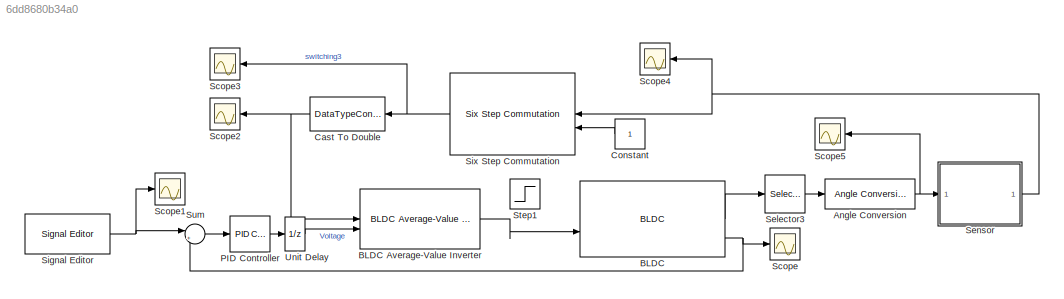
MODEL slx_6dd8680b34a0
KIND model
CONFIG AbsTol = auto
CONFIG EnableMultiTasking = off
CONFIG FixedStep = auto
CONFIG MaxStep = auto
CONFIG MinStep = auto
CONFIG RelTol = 1e-3
CONFIG SampleTimeConstraint = Unconstrained
CONFIG SolverName = VariableStepAuto
CONFIG StartTime = 0.0
CONFIG StopTime = 30
BLOCK [Reference] Angle Conversion  REF=aerolibconvert2/Angle Conversion
  SourceBlock = aerolibconvert2/Angle Conversion
  SourceType = Angle Conversion
BLOCK [Reference] BLDC  REF=autolibbldc/BLDC
  LibrarySourceBlock = mcblib/Electrical Systems/Motors/BLDC
  SourceBlock = autolibbldc/BLDC
  SourceType = BLDC
BLOCK [Reference] BLDC Average-Value Inverter  REF=mcbplantlib/BLDC Average-Value Inverter
  LibrarySourceBlock = mcblib/Electrical Systems/Inverters/BLDC Average-Value Inverter
  SourceBlock = mcbplantlib/BLDC Average-Value Inverter
  SourceType = BLDC Average Value Inverter
BLOCK [DataTypeConversion] Cast To Double
  OutDataTypeStr = double
  RndMeth = Floor
  SaturateOnIntegerOverflow = off
BLOCK [Constant] Constant
BLOCK [Reference] PID Controller  REF=slpidlib/PID Controller
  SourceBlock = slpidlib/PID Controller
  SourceType = PID 1dof
BLOCK [Scope] Scope
  Floating = off
  NumInputPorts = 1
  ScopeSpecificationString = Simulink.scopes.TimeScopeBlockCfg('CurrentConfiguration', extmgr.ConfigurationSet(extmgr.Configuration('Core','General UI',true),extmgr.Configuration('Core','Source UI',true),extmgr.Configuration('Sources','WiredSimulink',true),extmgr.Configuration('Visuals','Time Domain',true,'SerializedDisplays',{struct('MinYLimReal','-275.75235','MaxYLimReal','2481.77117','YLabelReal','','MinYLimMag',' 0.00000'...<+1447ch>
BLOCK [Scope] Scope1
  Floating = off
  NumInputPorts = 1
  ScopeSpecificationString = Simulink.scopes.TimeScopeBlockCfg('CurrentConfiguration', extmgr.ConfigurationSet(extmgr.Configuration('Core','General UI',true),extmgr.Configuration('Core','Source UI',true),extmgr.Configuration('Sources','WiredSimulink',true,'DataLoggingVariableName','ScopeData1'),extmgr.Configuration('Visuals','Time Domain',true,'SerializedDisplays',{struct('MinYLimReal','785.71429','MaxYLimReal','2928.57143','...<+1415ch>
BLOCK [Scope] Scope2
  Floating = off
  NumInputPorts = 1
  ScopeSpecificationString = Simulink.scopes.TimeScopeBlockCfg('CurrentConfiguration', extmgr.ConfigurationSet(extmgr.Configuration('Core','General UI',true),extmgr.Configuration('Core','Source UI',true),extmgr.Configuration('Sources','WiredSimulink',true,'DataLoggingVariableName','ScopeData2'),extmgr.Configuration('Visuals','Time Domain',true,'SerializedDisplays',{struct('MinYLimReal','-0.125','MaxYLimReal','1.125','YLabelRe...<+1483ch>
BLOCK [Scope] Scope3
  Floating = off
  NumInputPorts = 1
  ScopeSpecificationString = Simulink.scopes.TimeScopeBlockCfg('CurrentConfiguration', extmgr.ConfigurationSet(extmgr.Configuration('Core','General UI',true),extmgr.Configuration('Core','Source UI',true),extmgr.Configuration('Sources','WiredSimulink',true,'DataLoggingVariableName','ScopeData3'),extmgr.Configuration('Visuals','Time Domain',true,'SerializedDisplays',{struct('MinYLimReal','-0.125','MaxYLimReal','1.125','YLabelRe...<+1459ch>
BLOCK [Scope] Scope4
  Floating = off
  NumInputPorts = 1
  ScopeSpecificationString = Simulink.scopes.TimeScopeBlockCfg('CurrentConfiguration', extmgr.ConfigurationSet(extmgr.Configuration('Core','General UI',true),extmgr.Configuration('Core','Source UI',true),extmgr.Configuration('Sources','WiredSimulink',true,'DataLoggingVariableName','ScopeData4'),extmgr.Configuration('Visuals','Time Domain',true,'SerializedDisplays',{struct('MinYLimReal','-44.99999','MaxYLimReal','404.99988','Y...<+1400ch>
BLOCK [Scope] Scope5
  Floating = off
  NumInputPorts = 1
  ScopeSpecificationString = Simulink.scopes.TimeScopeBlockCfg('CurrentConfiguration', extmgr.ConfigurationSet(extmgr.Configuration('Core','General UI',true),extmgr.Configuration('Core','Source UI',true),extmgr.Configuration('Sources','WiredSimulink',true,'DataLoggingVariableName','ScopeData5'),extmgr.Configuration('Visuals','Time Domain',true,'SerializedDisplays',{struct('MinYLimReal','-311947.24054','MaxYLimReal','2807525.1...<+1442ch>
BLOCK [Selector] Selector3
  IndexOptions = Index vector (dialog)
  Indices = [9]
  InputPortWidth = 16
  OutputSizes = 1
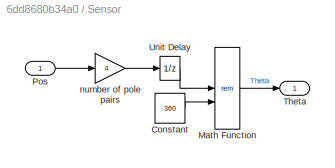
BLOCK [SubSystem] Sensor
BLOCK [Constant] Sensor/Constant
  Value = 360
BLOCK [Math] Sensor/Math Function
  Operator = rem
BLOCK [Inport] Sensor/Pos
BLOCK [Outport] Sensor/Theta
BLOCK [UnitDelay] Sensor/Unit Delay
  HasFrameUpgradeWarning = on
  SampleTime = 2e-5
BLOCK [Gain] Sensor/number of pole pairs
  Gain = 4
BLOCK [Reference] Signal Editor  REF=SignalEditorBlockLib/Signal Editor
  LibrarySourceBlock = simulink/Sources/Signal Editor
  SourceBlock = SignalEditorBlockLib/Signal Editor
  SourceType = SignalEditor
  UserDataPersistent = on
BLOCK [Reference] Six Step Commutation  REF=mcbcontrolslib/Six Step Commutation
  LibrarySourceBlock = mcblib/Controls/Control Reference/Six Step Commutation
  SourceBlock = mcbcontrolslib/Six Step Commutation
  SourceType = Six-Step Commutation
BLOCK [Step] Step1
  After = 2.77
  SampleTime = 0
  Time = 0.5
BLOCK [Sum] Sum
  Inputs = |+-
BLOCK [UnitDelay] Unit Delay
  HasFrameUpgradeWarning = on
  SampleTime = -1
NET Angle Conversion:1 -> Scope5:1, Sensor:1
LINE BLDC Average-Value Inverter:1 -> BLDC:2
LINE BLDC:1 -> Selector3:1
NET BLDC:3 -> Scope:1, Sum:2
NET Cast To Double:1 -> BLDC Average-Value Inverter:1, Scope2:1
LINE Constant:1 -> Six Step Commutation:2
LINE PID Controller:1 -> Unit Delay:1
LINE Selector3:1 -> Angle Conversion:1
LINE Sensor/Constant:1 -> Sensor/Math Function:2
LINE Sensor/Math Function:1 -> Sensor/Theta:1
LINE Sensor/Pos:1 -> Sensor/number of pole pairs:1
LINE Sensor/Unit Delay:1 -> Sensor/Math Function:1
LINE Sensor/number of pole pairs:1 -> Sensor/Unit Delay:1
NET Sensor:1 -> Scope4:1, Six Step Commutation:1
NET Signal Editor:1 -> Scope1:1, Sum:1
NET Six Step Commutation:1 -> Cast To Double:1, Scope3:1
LINE Sum:1 -> PID Controller:1
LINE Unit Delay:1 -> BLDC Average-Value Inverter:2
note: NET lines group one-source signal fan-out (src -> all destinations, sorted); 1:1 wires keep LINE
